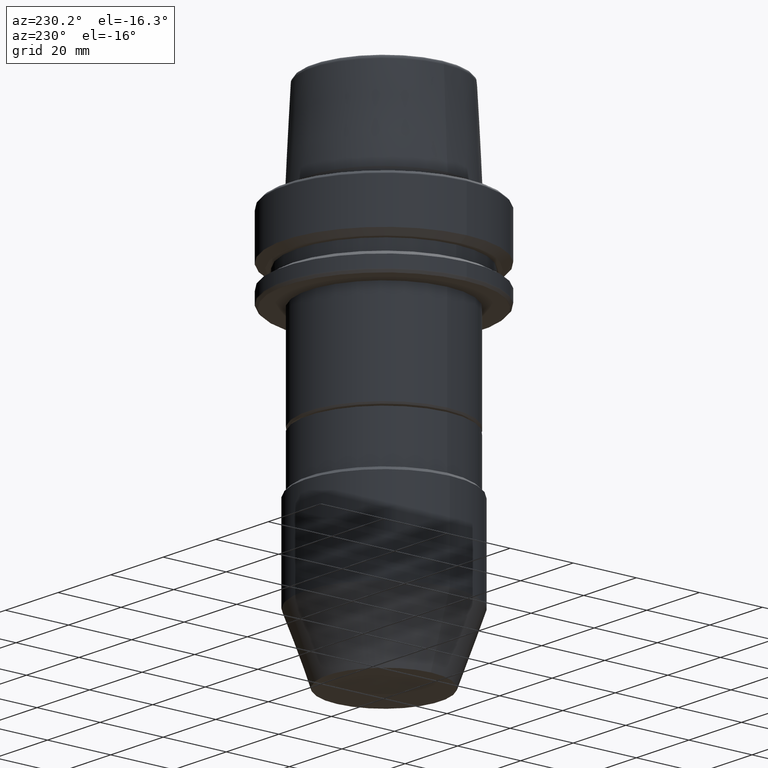
[diagram: clean part render]
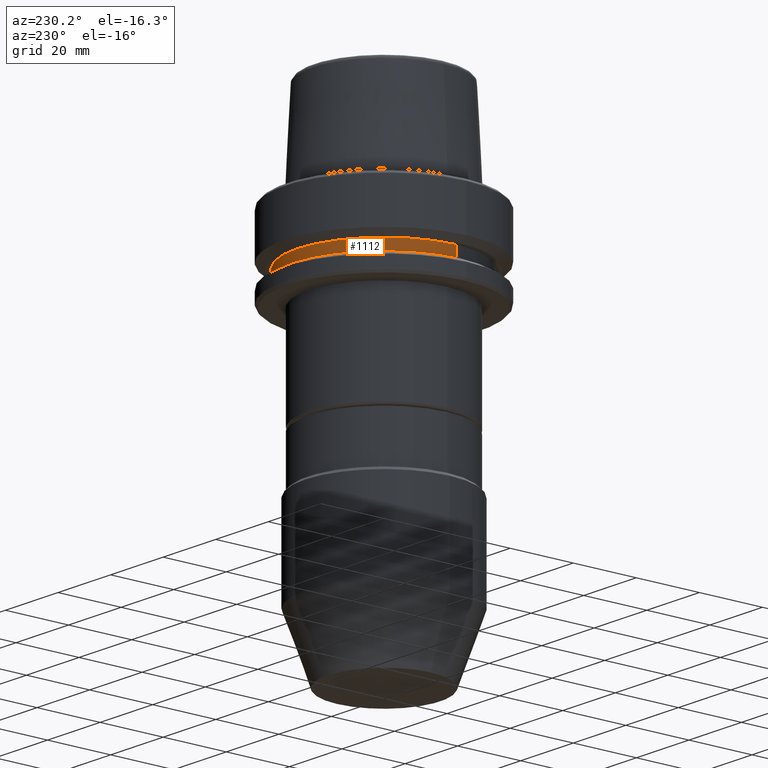
[diagram: same view with one face highlighted and labeled with its STEP entity id]
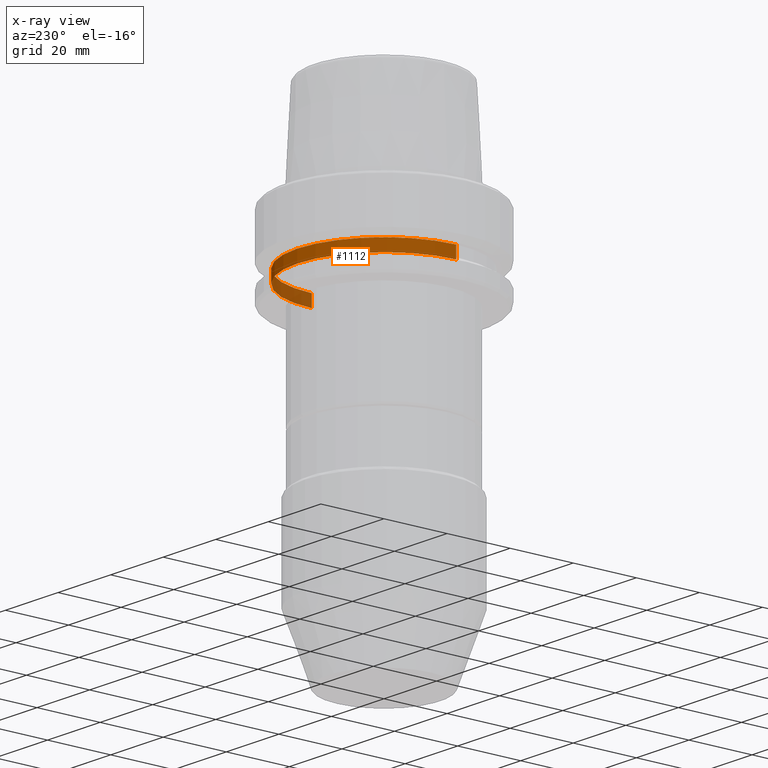
[diagram: x-ray of the same camera — body ghosted, the highlighted face saturated]
A machine part, auxiliary view. The second image highlights one B-rep face of the part: STEP entity #1112.
The next image is the same camera in x-ray: the body ghosted, the highlighted face saturated — about 17% of this face is hidden behind the body in this view.
In plain terms, the highlighted cylindrical surface (partial cylindrical patch) has radius 27.5 mm, axis along (-0, -0, 1).
Its self-contained STEP definition (entity closure, byte-faithful):
#5 = VECTOR ( 'NONE', #413, 1000.000000000000000 ) ;
#19 = CARTESIAN_POINT ( 'NONE',  ( 0.0000000000000000000, 0.0000000000000000000, 78.96908074195309300 ) ) ;
#31 = CARTESIAN_POINT ( 'NONE',  ( 0.0000000000000000000, 0.0000000000000000000, -19.90000000000001600 ) ) ;
#40 = AXIS2_PLACEMENT_3D ( 'NONE', #31, #834, #140 ) ;
#119 = AXIS2_PLACEMENT_3D ( 'NONE', #19, #252, #1066 ) ;
#140 = DIRECTION ( 'NONE',  ( 1.000000000000000000, 0.0000000000000000000, 0.0000000000000000000 ) ) ;
#166 = VECTOR ( 'NONE', #731, 1000.000000000000000 ) ;
#180 = CARTESIAN_POINT ( 'NONE',  ( 27.49999999999999600, 0.0000000000000000000, 78.96908074195309300 ) ) ;
#190 = ORIENTED_EDGE ( 'NONE', *, *, #1152, .T. ) ;
#252 = DIRECTION ( 'NONE',  ( -0.0000000000000000000, -0.0000000000000000000, 1.000000000000000000 ) ) ;
#280 = CARTESIAN_POINT ( 'NONE',  ( 27.49999999999999600, 0.0000000000000000000, -19.90000000000001600 ) ) ;
#320 = VERTEX_POINT ( 'NONE', #724 ) ;
#413 = DIRECTION ( 'NONE',  ( -0.0000000000000000000, -0.0000000000000000000, 1.000000000000000000 ) ) ;
#437 = LINE ( 'NONE', #1291, #166 ) ;
#568 = CIRCLE ( 'NONE', #1178, 27.49999999999999600 ) ;
#654 = CARTESIAN_POINT ( 'NONE',  ( 0.0000000000000000000, 0.0000000000000000000, -16.10000000000001600 ) ) ;
#668 = ORIENTED_EDGE ( 'NONE', *, *, #1082, .F. ) ;
#724 = CARTESIAN_POINT ( 'NONE',  ( 27.49999999999999600, 0.0000000000000000000, -16.10000000000001600 ) ) ;
#731 = DIRECTION ( 'NONE',  ( -0.0000000000000000000, -0.0000000000000000000, 1.000000000000000000 ) ) ;
#735 = VERTEX_POINT ( 'NONE', #973 ) ;
#737 = VERTEX_POINT ( 'NONE', #280 ) ;
#763 = DIRECTION ( 'NONE',  ( 1.000000000000000000, 0.0000000000000000000, 0.0000000000000000000 ) ) ;
#831 = LINE ( 'NONE', #180, #5 ) ;
#834 = DIRECTION ( 'NONE',  ( -0.0000000000000000000, -0.0000000000000000000, 1.000000000000000000 ) ) ;
#837 = ORIENTED_EDGE ( 'NONE', *, *, #850, .F. ) ;
#850 = EDGE_CURVE ( 'NONE', #737, #320, #831, .T. ) ;
#927 = VERTEX_POINT ( 'NONE', #1433 ) ;
#973 = CARTESIAN_POINT ( 'NONE',  ( -27.49999999999999600, 3.367778697655220900E-015, -16.10000000000001600 ) ) ;
#1030 = CIRCLE ( 'NONE', #40, 27.49999999999999600 ) ;
#1066 = DIRECTION ( 'NONE',  ( 1.000000000000000000, 0.0000000000000000000, 0.0000000000000000000 ) ) ;
#1082 = EDGE_CURVE ( 'NONE', #320, #735, #568, .T. ) ;
#1112 = ADVANCED_FACE ( 'NONE', ( #1420 ), #1144, .T. ) ;
#1144 = CYLINDRICAL_SURFACE ( 'NONE', #119, 27.49999999999999600 ) ;
#1152 = EDGE_CURVE ( 'NONE', #737, #927, #1030, .T. ) ;
#1178 = AXIS2_PLACEMENT_3D ( 'NONE', #654, #1462, #763 ) ;
#1287 = EDGE_LOOP ( 'NONE', ( #190, #1382, #668, #837 ) ) ;
#1291 = CARTESIAN_POINT ( 'NONE',  ( -27.49999999999999600, 3.367778697655220900E-015, 78.96908074195309300 ) ) ;
#1326 = EDGE_CURVE ( 'NONE', #927, #735, #437, .T. ) ;
#1382 = ORIENTED_EDGE ( 'NONE', *, *, #1326, .T. ) ;
#1420 = FACE_OUTER_BOUND ( 'NONE', #1287, .T. ) ;
#1433 = CARTESIAN_POINT ( 'NONE',  ( -27.49999999999999600, 3.367778697655220900E-015, -19.90000000000001600 ) ) ;
#1462 = DIRECTION ( 'NONE',  ( -0.0000000000000000000, -0.0000000000000000000, 1.000000000000000000 ) ) ;